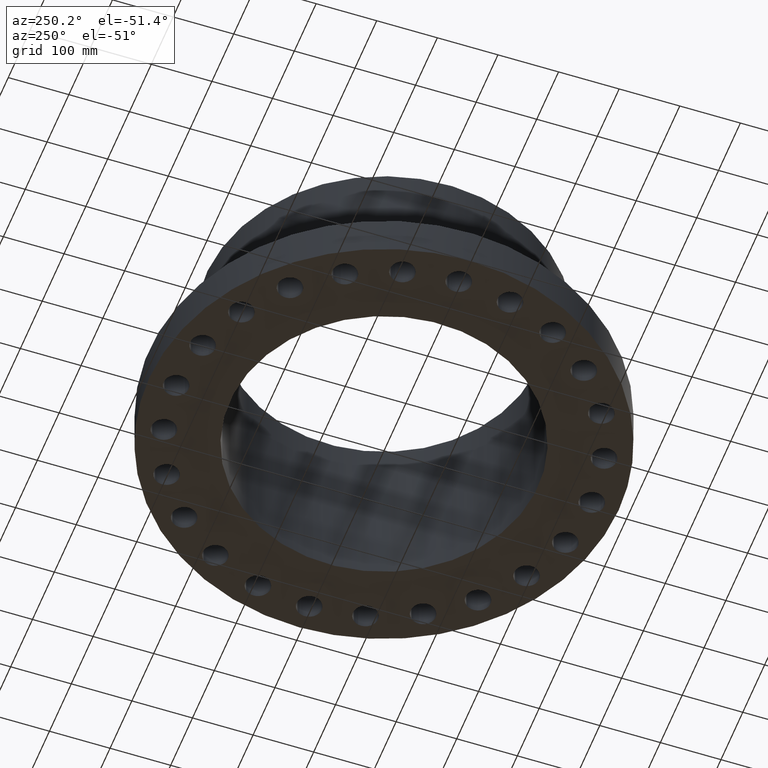
[diagram: clean part render]
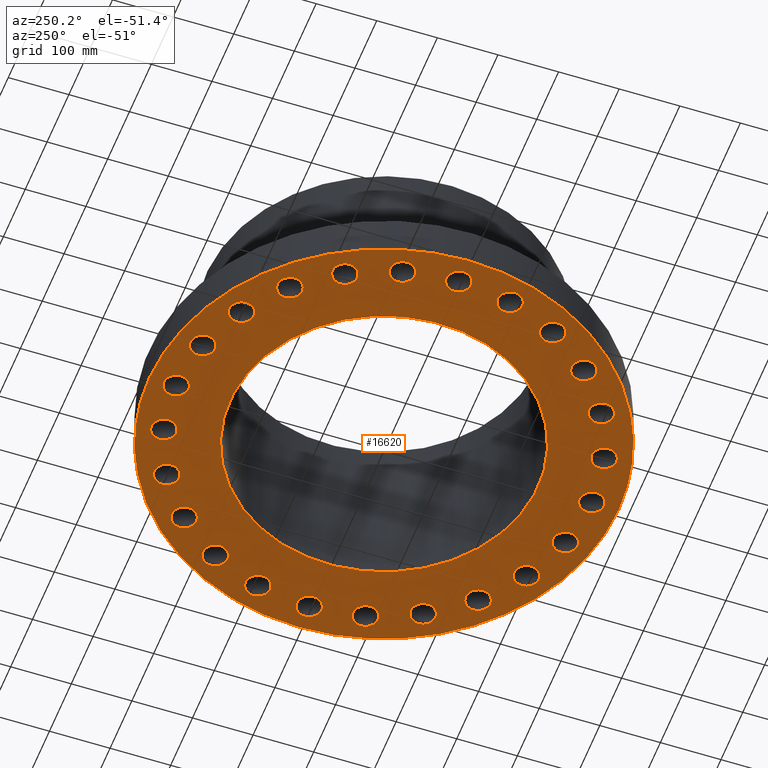
[diagram: same view with one face highlighted and labeled with its STEP entity id]
A machine part, auxiliary view. The second image highlights one B-rep face of the part: STEP entity #16620.
In plain terms, the highlighted planar face has unit normal (0, 0, 1).
Its self-contained STEP definition (entity closure, byte-faithful):
#65=AXIS2_PLACEMENT_3D('Circle Axis2P3D',#63,#64,$) ;
#82=AXIS2_PLACEMENT_3D('Circle Axis2P3D',#80,#81,$) ;
#577=AXIS2_PLACEMENT_3D('Circle Axis2P3D',#575,#576,$) ;
#586=AXIS2_PLACEMENT_3D('Circle Axis2P3D',#584,#585,$) ;
#593=AXIS2_PLACEMENT_3D('Circle Axis2P3D',#591,#592,$) ;
#619=AXIS2_PLACEMENT_3D('Circle Axis2P3D',#617,#618,$) ;
#626=AXIS2_PLACEMENT_3D('Circle Axis2P3D',#624,#625,$) ;
#633=AXIS2_PLACEMENT_3D('Circle Axis2P3D',#631,#632,$) ;
#709=AXIS2_PLACEMENT_3D('Circle Axis2P3D',#707,#708,$) ;
#721=AXIS2_PLACEMENT_3D('Circle Axis2P3D',#719,#720,$) ;
#752=AXIS2_PLACEMENT_3D('Circle Axis2P3D',#750,#751,$) ;
#764=AXIS2_PLACEMENT_3D('Circle Axis2P3D',#762,#763,$) ;
#795=AXIS2_PLACEMENT_3D('Circle Axis2P3D',#793,#794,$) ;
#807=AXIS2_PLACEMENT_3D('Circle Axis2P3D',#805,#806,$) ;
#838=AXIS2_PLACEMENT_3D('Circle Axis2P3D',#836,#837,$) ;
#850=AXIS2_PLACEMENT_3D('Circle Axis2P3D',#848,#849,$) ;
#881=AXIS2_PLACEMENT_3D('Circle Axis2P3D',#879,#880,$) ;
#893=AXIS2_PLACEMENT_3D('Circle Axis2P3D',#891,#892,$) ;
#924=AXIS2_PLACEMENT_3D('Circle Axis2P3D',#922,#923,$) ;
#936=AXIS2_PLACEMENT_3D('Circle Axis2P3D',#934,#935,$) ;
#967=AXIS2_PLACEMENT_3D('Circle Axis2P3D',#965,#966,$) ;
#979=AXIS2_PLACEMENT_3D('Circle Axis2P3D',#977,#978,$) ;
#1010=AXIS2_PLACEMENT_3D('Circle Axis2P3D',#1008,#1009,$) ;
#1022=AXIS2_PLACEMENT_3D('Circle Axis2P3D',#1020,#1021,$) ;
#1053=AXIS2_PLACEMENT_3D('Circle Axis2P3D',#1051,#1052,$) ;
#1065=AXIS2_PLACEMENT_3D('Circle Axis2P3D',#1063,#1064,$) ;
#1096=AXIS2_PLACEMENT_3D('Circle Axis2P3D',#1094,#1095,$) ;
#1108=AXIS2_PLACEMENT_3D('Circle Axis2P3D',#1106,#1107,$) ;
#1139=AXIS2_PLACEMENT_3D('Circle Axis2P3D',#1137,#1138,$) ;
#1151=AXIS2_PLACEMENT_3D('Circle Axis2P3D',#1149,#1150,$) ;
#1182=AXIS2_PLACEMENT_3D('Circle Axis2P3D',#1180,#1181,$) ;
#1194=AXIS2_PLACEMENT_3D('Circle Axis2P3D',#1192,#1193,$) ;
#1225=AXIS2_PLACEMENT_3D('Circle Axis2P3D',#1223,#1224,$) ;
#1237=AXIS2_PLACEMENT_3D('Circle Axis2P3D',#1235,#1236,$) ;
#1268=AXIS2_PLACEMENT_3D('Circle Axis2P3D',#1266,#1267,$) ;
#1280=AXIS2_PLACEMENT_3D('Circle Axis2P3D',#1278,#1279,$) ;
#1311=AXIS2_PLACEMENT_3D('Circle Axis2P3D',#1309,#1310,$) ;
#1323=AXIS2_PLACEMENT_3D('Circle Axis2P3D',#1321,#1322,$) ;
#1354=AXIS2_PLACEMENT_3D('Circle Axis2P3D',#1352,#1353,$) ;
#1366=AXIS2_PLACEMENT_3D('Circle Axis2P3D',#1364,#1365,$) ;
#1397=AXIS2_PLACEMENT_3D('Circle Axis2P3D',#1395,#1396,$) ;
#1409=AXIS2_PLACEMENT_3D('Circle Axis2P3D',#1407,#1408,$) ;
#1440=AXIS2_PLACEMENT_3D('Circle Axis2P3D',#1438,#1439,$) ;
#1452=AXIS2_PLACEMENT_3D('Circle Axis2P3D',#1450,#1451,$) ;
#1483=AXIS2_PLACEMENT_3D('Circle Axis2P3D',#1481,#1482,$) ;
#1495=AXIS2_PLACEMENT_3D('Circle Axis2P3D',#1493,#1494,$) ;
#1526=AXIS2_PLACEMENT_3D('Circle Axis2P3D',#1524,#1525,$) ;
#1538=AXIS2_PLACEMENT_3D('Circle Axis2P3D',#1536,#1537,$) ;
#1569=AXIS2_PLACEMENT_3D('Circle Axis2P3D',#1567,#1568,$) ;
#1581=AXIS2_PLACEMENT_3D('Circle Axis2P3D',#1579,#1580,$) ;
#1612=AXIS2_PLACEMENT_3D('Circle Axis2P3D',#1610,#1611,$) ;
#1624=AXIS2_PLACEMENT_3D('Circle Axis2P3D',#1622,#1623,$) ;
#1655=AXIS2_PLACEMENT_3D('Circle Axis2P3D',#1653,#1654,$) ;
#1667=AXIS2_PLACEMENT_3D('Circle Axis2P3D',#1665,#1666,$) ;
#1949=AXIS2_PLACEMENT_3D('Circle Axis2P3D',#1947,#1948,$) ;
#1975=AXIS2_PLACEMENT_3D('Circle Axis2P3D',#1973,#1974,$) ;
#16510=AXIS2_PLACEMENT_3D('Plane Axis2P3D',#16507,#16508,#16509) ;
#46=CARTESIAN_POINT('Vertex',(12.7891581249,-0.388334686271,2.2401153548E-016)) ;
#60=CARTESIAN_POINT('Vertex',(14.2108418752,0.388334686271,2.2401153548E-016)) ;
#63=CARTESIAN_POINT('Axis2P3D Location',(13.5000000001,0.,0.)) ;
#80=CARTESIAN_POINT('Axis2P3D Location',(13.5000000001,0.,0.)) ;
#575=CARTESIAN_POINT('Axis2P3D Location',(0.,0.,2.23792987641E-015)) ;
#579=CARTESIAN_POINT('Vertex',(-3.6314189292E-014,15.2500000001,0.)) ;
#581=CARTESIAN_POINT('Vertex',(7.31123946374,13.3831340689,2.23792987641E-015)) ;
#584=CARTESIAN_POINT('Axis2P3D Location',(0.,0.,2.23792987641E-015)) ;
#588=CARTESIAN_POINT('Vertex',(-15.2500000001,-8.63994681895E-015,0.)) ;
#591=CARTESIAN_POINT('Axis2P3D Location',(0.,0.,2.23792987641E-015)) ;
#595=CARTESIAN_POINT('Vertex',(-7.31123946374,-13.3831340689,2.23792987641E-015)) ;
#617=CARTESIAN_POINT('Axis2P3D Location',(0.,0.,2.23792987641E-015)) ;
#621=CARTESIAN_POINT('Vertex',(-1.26109277161E-014,-15.2500000001,0.)) ;
#624=CARTESIAN_POINT('Axis2P3D Location',(0.,0.,2.23792987641E-015)) ;
#628=CARTESIAN_POINT('Vertex',(15.2500000001,4.47585975282E-015,0.)) ;
#631=CARTESIAN_POINT('Axis2P3D Location',(0.,0.,2.23792987641E-015)) ;
#697=CARTESIAN_POINT('Vertex',(12.2528697167,-3.68518019627,2.2401153548E-016)) ;
#704=CARTESIAN_POINT('Vertex',(13.8271275932,-3.30293402153,2.2401153548E-016)) ;
#707=CARTESIAN_POINT('Axis2P3D Location',(13.039998655,-3.4940571089,0.)) ;
#719=CARTESIAN_POINT('Axis2P3D Location',(13.039998655,-3.4940571089,0.)) ;
#740=CARTESIAN_POINT('Vertex',(10.8815684861,-6.73088676594,2.2401153548E-016)) ;
#747=CARTESIAN_POINT('Vertex',(12.5011174162,-6.76911323411,2.2401153548E-016)) ;
#750=CARTESIAN_POINT('Axis2P3D Location',(11.6913429511,-6.75000000003,0.)) ;
#762=CARTESIAN_POINT('Axis2P3D Location',(11.6913429511,-6.75000000003,0.)) ;
#783=CARTESIAN_POINT('Vertex',(8.76870634577,-9.31789452583,2.2401153548E-016)) ;
#790=CARTESIAN_POINT('Vertex',(10.3231767463,-9.77398856628,2.2401153548E-016)) ;
#793=CARTESIAN_POINT('Axis2P3D Location',(9.54594154606,-9.54594154606,0.)) ;
#805=CARTESIAN_POINT('Axis2P3D Location',(9.54594154606,-9.54594154606,0.)) ;
#826=CARTESIAN_POINT('Vertex',(6.05827135898,-11.2699031723,2.2401153548E-016)) ;
#833=CARTESIAN_POINT('Vertex',(7.44172864108,-12.1127827299,2.2401153548E-016)) ;
#836=CARTESIAN_POINT('Axis2P3D Location',(6.75000000003,-11.6913429511,0.)) ;
#848=CARTESIAN_POINT('Axis2P3D Location',(6.75000000003,-11.6913429511,0.)) ;
#869=CARTESIAN_POINT('Vertex',(2.93497519084,-12.453886542,2.2401153548E-016)) ;
#876=CARTESIAN_POINT('Vertex',(4.05313902695,-13.6261107679,2.2401153548E-016)) ;
#879=CARTESIAN_POINT('Axis2P3D Location',(3.4940571089,-13.039998655,0.)) ;
#891=CARTESIAN_POINT('Axis2P3D Location',(3.4940571089,-13.039998655,0.)) ;
#912=CARTESIAN_POINT('Vertex',(-0.388334686271,-12.7891581249,2.2401153548E-016)) ;
#919=CARTESIAN_POINT('Vertex',(0.388334686271,-14.2108418752,2.2401153548E-016)) ;
#922=CARTESIAN_POINT('Axis2P3D Location',(-1.41129328698E-015,-13.5000000001,0.)) ;
#934=CARTESIAN_POINT('Axis2P3D Location',(-1.41129328698E-015,-13.5000000001,0.)) ;
#955=CARTESIAN_POINT('Vertex',(-3.68518019627,-12.2528697167,2.22918796283E-016)) ;
#962=CARTESIAN_POINT('Vertex',(-3.30293402153,-13.8271275932,2.22918796283E-016)) ;
#965=CARTESIAN_POINT('Axis2P3D Location',(-3.4940571089,-13.039998655,-2.18547839493E-018)) ;
#977=CARTESIAN_POINT('Axis2P3D Location',(-3.4940571089,-13.039998655,-2.18547839493E-018)) ;
#998=CARTESIAN_POINT('Vertex',(-6.73088676594,-10.8815684861,2.22372426684E-016)) ;
#1005=CARTESIAN_POINT('Vertex',(-6.76911323411,-12.5011174162,2.22372426684E-016)) ;
#1008=CARTESIAN_POINT('Axis2P3D Location',(-6.75000000003,-11.6913429511,-3.2782175924E-018)) ;
#1020=CARTESIAN_POINT('Axis2P3D Location',(-6.75000000003,-11.6913429511,-3.2782175924E-018)) ;
#1041=CARTESIAN_POINT('Vertex',(-9.31789452583,-8.76870634577,2.2401153548E-016)) ;
#1048=CARTESIAN_POINT('Vertex',(-9.77398856628,-10.3231767463,2.2401153548E-016)) ;
#1051=CARTESIAN_POINT('Axis2P3D Location',(-9.54594154606,-9.54594154606,0.)) ;
#1063=CARTESIAN_POINT('Axis2P3D Location',(-9.54594154606,-9.54594154606,0.)) ;
#1084=CARTESIAN_POINT('Vertex',(-11.2699031723,-6.05827135898,2.2401153548E-016)) ;
#1091=CARTESIAN_POINT('Vertex',(-12.1127827299,-7.44172864108,2.2401153548E-016)) ;
#1094=CARTESIAN_POINT('Axis2P3D Location',(-11.6913429511,-6.75000000003,0.)) ;
#1106=CARTESIAN_POINT('Axis2P3D Location',(-11.6913429511,-6.75000000003,0.)) ;
#1127=CARTESIAN_POINT('Vertex',(-12.453886542,-2.93497519084,2.2401153548E-016)) ;
#1134=CARTESIAN_POINT('Vertex',(-13.6261107679,-4.05313902695,2.2401153548E-016)) ;
#1137=CARTESIAN_POINT('Axis2P3D Location',(-13.039998655,-3.4940571089,0.)) ;
#1149=CARTESIAN_POINT('Axis2P3D Location',(-13.039998655,-3.4940571089,0.)) ;
#1170=CARTESIAN_POINT('Vertex',(-12.7891581249,0.388334686271,2.2401153548E-016)) ;
#1177=CARTESIAN_POINT('Vertex',(-14.2108418752,-0.388334686271,2.2401153548E-016)) ;
#1180=CARTESIAN_POINT('Axis2P3D Location',(-13.5000000001,-1.65327317886E-015,0.)) ;
#1192=CARTESIAN_POINT('Axis2P3D Location',(-13.5000000001,-1.65327317886E-015,0.)) ;
#1213=CARTESIAN_POINT('Vertex',(-12.2528697167,3.68518019627,2.2401153548E-016)) ;
#1220=CARTESIAN_POINT('Vertex',(-13.8271275932,3.30293402153,2.2401153548E-016)) ;
#1223=CARTESIAN_POINT('Axis2P3D Location',(-13.039998655,3.4940571089,0.)) ;
#1235=CARTESIAN_POINT('Axis2P3D Location',(-13.039998655,3.4940571089,0.)) ;
#1256=CARTESIAN_POINT('Vertex',(-10.8815684861,6.73088676594,2.2401153548E-016)) ;
#1263=CARTESIAN_POINT('Vertex',(-12.5011174162,6.76911323411,2.2401153548E-016)) ;
#1266=CARTESIAN_POINT('Axis2P3D Location',(-11.6913429511,6.75000000003,0.)) ;
#1278=CARTESIAN_POINT('Axis2P3D Location',(-11.6913429511,6.75000000003,0.)) ;
#1299=CARTESIAN_POINT('Vertex',(-8.76870634577,9.31789452583,2.2401153548E-016)) ;
#1306=CARTESIAN_POINT('Vertex',(-10.3231767463,9.77398856628,2.2401153548E-016)) ;
#1309=CARTESIAN_POINT('Axis2P3D Location',(-9.54594154606,9.54594154606,0.)) ;
#1321=CARTESIAN_POINT('Axis2P3D Location',(-9.54594154606,9.54594154606,0.)) ;
#1342=CARTESIAN_POINT('Vertex',(-6.05827135898,11.2699031723,2.2401153548E-016)) ;
#1349=CARTESIAN_POINT('Vertex',(-7.44172864108,12.1127827299,2.2401153548E-016)) ;
#1352=CARTESIAN_POINT('Axis2P3D Location',(-6.75000000003,11.6913429511,0.)) ;
#1364=CARTESIAN_POINT('Axis2P3D Location',(-6.75000000003,11.6913429511,0.)) ;
#1385=CARTESIAN_POINT('Vertex',(-2.93497519084,12.453886542,2.2401153548E-016)) ;
#1392=CARTESIAN_POINT('Vertex',(-4.05313902695,13.6261107679,2.2401153548E-016)) ;
#1395=CARTESIAN_POINT('Axis2P3D Location',(-3.4940571089,13.039998655,0.)) ;
#1407=CARTESIAN_POINT('Axis2P3D Location',(-3.4940571089,13.039998655,0.)) ;
#1428=CARTESIAN_POINT('Vertex',(0.388334686271,12.7891581249,2.2401153548E-016)) ;
#1435=CARTESIAN_POINT('Vertex',(-0.388334686271,14.2108418752,2.2401153548E-016)) ;
#1438=CARTESIAN_POINT('Axis2P3D Location',(-2.47990976828E-015,13.5000000001,0.)) ;
#1450=CARTESIAN_POINT('Axis2P3D Location',(-2.47990976828E-015,13.5000000001,0.)) ;
#1471=CARTESIAN_POINT('Vertex',(3.68518019627,12.2528697167,2.2401153548E-016)) ;
#1478=CARTESIAN_POINT('Vertex',(3.30293402153,13.8271275932,2.2401153548E-016)) ;
#1481=CARTESIAN_POINT('Axis2P3D Location',(3.4940571089,13.039998655,0.)) ;
#1493=CARTESIAN_POINT('Axis2P3D Location',(3.4940571089,13.039998655,0.)) ;
#1514=CARTESIAN_POINT('Vertex',(6.73088676594,10.8815684861,2.2401153548E-016)) ;
#1521=CARTESIAN_POINT('Vertex',(6.76911323411,12.5011174162,2.2401153548E-016)) ;
#1524=CARTESIAN_POINT('Axis2P3D Location',(6.75000000003,11.6913429511,0.)) ;
#1536=CARTESIAN_POINT('Axis2P3D Location',(6.75000000003,11.6913429511,0.)) ;
#1557=CARTESIAN_POINT('Vertex',(9.31789452583,8.76870634577,2.2401153548E-016)) ;
#1564=CARTESIAN_POINT('Vertex',(9.77398856628,10.3231767463,2.2401153548E-016)) ;
#1567=CARTESIAN_POINT('Axis2P3D Location',(9.54594154606,9.54594154606,0.)) ;
#1579=CARTESIAN_POINT('Axis2P3D Location',(9.54594154606,9.54594154606,0.)) ;
#1600=CARTESIAN_POINT('Vertex',(11.2699031723,6.05827135898,2.2401153548E-016)) ;
#1607=CARTESIAN_POINT('Vertex',(12.1127827299,7.44172864108,2.2401153548E-016)) ;
#1610=CARTESIAN_POINT('Axis2P3D Location',(11.6913429511,6.75000000003,0.)) ;
#1622=CARTESIAN_POINT('Axis2P3D Location',(11.6913429511,6.75000000003,0.)) ;
#1643=CARTESIAN_POINT('Vertex',(12.453886542,2.93497519084,2.2401153548E-016)) ;
#1650=CARTESIAN_POINT('Vertex',(13.6261107679,4.05313902695,2.2401153548E-016)) ;
#1653=CARTESIAN_POINT('Axis2P3D Location',(13.039998655,3.4940571089,0.)) ;
#1665=CARTESIAN_POINT('Axis2P3D Location',(13.039998655,3.4940571089,0.)) ;
#1947=CARTESIAN_POINT('Axis2P3D Location',(0.,0.,0.)) ;
#1951=CARTESIAN_POINT('Vertex',(-4.79425538606,-8.77582561894,0.)) ;
#1953=CARTESIAN_POINT('Vertex',(4.79425538606,8.77582561894,0.)) ;
#1973=CARTESIAN_POINT('Axis2P3D Location',(0.,0.,0.)) ;
#16507=CARTESIAN_POINT('Axis2P3D Location',(0.,0.,0.)) ;
#64=DIRECTION('Axis2P3D Direction',(0.,-0.,0.0393700787402)) ;
#81=DIRECTION('Axis2P3D Direction',(0.,-0.,0.0393700787402)) ;
#576=DIRECTION('Axis2P3D Direction',(0.,0.,-0.0393700787402)) ;
#585=DIRECTION('Axis2P3D Direction',(0.,0.,-0.0393700787402)) ;
#592=DIRECTION('Axis2P3D Direction',(0.,0.,-0.0393700787402)) ;
#618=DIRECTION('Axis2P3D Direction',(0.,0.,-0.0393700787402)) ;
#625=DIRECTION('Axis2P3D Direction',(0.,0.,-0.0393700787402)) ;
#632=DIRECTION('Axis2P3D Direction',(0.,0.,-0.0393700787402)) ;
#708=DIRECTION('Axis2P3D Direction',(-0.,0.,0.0393700787402)) ;
#720=DIRECTION('Axis2P3D Direction',(-0.,0.,0.0393700787402)) ;
#751=DIRECTION('Axis2P3D Direction',(-0.,0.,0.0393700787402)) ;
#763=DIRECTION('Axis2P3D Direction',(-0.,0.,0.0393700787402)) ;
#794=DIRECTION('Axis2P3D Direction',(-0.,0.,0.0393700787402)) ;
#806=DIRECTION('Axis2P3D Direction',(-0.,0.,0.0393700787402)) ;
#837=DIRECTION('Axis2P3D Direction',(-0.,0.,0.0393700787402)) ;
#849=DIRECTION('Axis2P3D Direction',(-0.,0.,0.0393700787402)) ;
#880=DIRECTION('Axis2P3D Direction',(-0.,0.,0.0393700787402)) ;
#892=DIRECTION('Axis2P3D Direction',(-0.,0.,0.0393700787402)) ;
#923=DIRECTION('Axis2P3D Direction',(-0.,0.,0.0393700787402)) ;
#935=DIRECTION('Axis2P3D Direction',(-0.,0.,0.0393700787402)) ;
#966=DIRECTION('Axis2P3D Direction',(0.,0.,0.0393700787402)) ;
#978=DIRECTION('Axis2P3D Direction',(0.,0.,0.0393700787402)) ;
#1009=DIRECTION('Axis2P3D Direction',(0.,0.,0.0393700787402)) ;
#1021=DIRECTION('Axis2P3D Direction',(0.,0.,0.0393700787402)) ;
#1052=DIRECTION('Axis2P3D Direction',(0.,0.,0.0393700787402)) ;
#1064=DIRECTION('Axis2P3D Direction',(0.,0.,0.0393700787402)) ;
#1095=DIRECTION('Axis2P3D Direction',(0.,0.,0.0393700787402)) ;
#1107=DIRECTION('Axis2P3D Direction',(0.,0.,0.0393700787402)) ;
#1138=DIRECTION('Axis2P3D Direction',(0.,0.,0.0393700787402)) ;
#1150=DIRECTION('Axis2P3D Direction',(0.,0.,0.0393700787402)) ;
#1181=DIRECTION('Axis2P3D Direction',(0.,0.,0.0393700787402)) ;
#1193=DIRECTION('Axis2P3D Direction',(0.,0.,0.0393700787402)) ;
#1224=DIRECTION('Axis2P3D Direction',(0.,0.,0.0393700787402)) ;
#1236=DIRECTION('Axis2P3D Direction',(0.,0.,0.0393700787402)) ;
#1267=DIRECTION('Axis2P3D Direction',(0.,0.,0.0393700787402)) ;
#1279=DIRECTION('Axis2P3D Direction',(0.,0.,0.0393700787402)) ;
#1310=DIRECTION('Axis2P3D Direction',(0.,0.,0.0393700787402)) ;
#1322=DIRECTION('Axis2P3D Direction',(0.,0.,0.0393700787402)) ;
#1353=DIRECTION('Axis2P3D Direction',(0.,0.,0.0393700787402)) ;
#1365=DIRECTION('Axis2P3D Direction',(0.,0.,0.0393700787402)) ;
#1396=DIRECTION('Axis2P3D Direction',(0.,0.,0.0393700787402)) ;
#1408=DIRECTION('Axis2P3D Direction',(0.,0.,0.0393700787402)) ;
#1439=DIRECTION('Axis2P3D Direction',(0.,0.,0.0393700787402)) ;
#1451=DIRECTION('Axis2P3D Direction',(0.,0.,0.0393700787402)) ;
#1482=DIRECTION('Axis2P3D Direction',(0.,-0.,0.0393700787402)) ;
#1494=DIRECTION('Axis2P3D Direction',(0.,-0.,0.0393700787402)) ;
#1525=DIRECTION('Axis2P3D Direction',(0.,-0.,0.0393700787402)) ;
#1537=DIRECTION('Axis2P3D Direction',(0.,-0.,0.0393700787402)) ;
#1568=DIRECTION('Axis2P3D Direction',(0.,-0.,0.0393700787402)) ;
#1580=DIRECTION('Axis2P3D Direction',(0.,-0.,0.0393700787402)) ;
#1611=DIRECTION('Axis2P3D Direction',(0.,-0.,0.0393700787402)) ;
#1623=DIRECTION('Axis2P3D Direction',(0.,-0.,0.0393700787402)) ;
#1654=DIRECTION('Axis2P3D Direction',(0.,-0.,0.0393700787402)) ;
#1666=DIRECTION('Axis2P3D Direction',(0.,-0.,0.0393700787402)) ;
#1948=DIRECTION('Axis2P3D Direction',(0.,0.,-0.0393700787402)) ;
#1974=DIRECTION('Axis2P3D Direction',(0.,0.,-0.0393700787402)) ;
#16508=DIRECTION('Axis2P3D Direction',(0.,0.,0.0393700787402)) ;
#16509=DIRECTION('Axis2P3D XDirection',(0.0393700787402,0.,0.)) ;
#16513=ORIENTED_EDGE('',*,*,#623,.T.) ;
#16514=ORIENTED_EDGE('',*,*,#597,.T.) ;
#16515=ORIENTED_EDGE('',*,*,#590,.T.) ;
#16516=ORIENTED_EDGE('',*,*,#583,.T.) ;
#16517=ORIENTED_EDGE('',*,*,#635,.T.) ;
#16518=ORIENTED_EDGE('',*,*,#630,.T.) ;
#16521=ORIENTED_EDGE('',*,*,#1657,.F.) ;
#16522=ORIENTED_EDGE('',*,*,#1669,.F.) ;
#16525=ORIENTED_EDGE('',*,*,#1614,.F.) ;
#16526=ORIENTED_EDGE('',*,*,#1626,.F.) ;
#16529=ORIENTED_EDGE('',*,*,#1571,.F.) ;
#16530=ORIENTED_EDGE('',*,*,#1583,.F.) ;
#16533=ORIENTED_EDGE('',*,*,#1528,.F.) ;
#16534=ORIENTED_EDGE('',*,*,#1540,.F.) ;
#16537=ORIENTED_EDGE('',*,*,#1485,.F.) ;
#16538=ORIENTED_EDGE('',*,*,#1497,.F.) ;
#16541=ORIENTED_EDGE('',*,*,#1442,.F.) ;
#16542=ORIENTED_EDGE('',*,*,#1454,.F.) ;
#16545=ORIENTED_EDGE('',*,*,#1399,.F.) ;
#16546=ORIENTED_EDGE('',*,*,#1411,.F.) ;
#16549=ORIENTED_EDGE('',*,*,#1356,.F.) ;
#16550=ORIENTED_EDGE('',*,*,#1368,.F.) ;
#16553=ORIENTED_EDGE('',*,*,#1313,.F.) ;
#16554=ORIENTED_EDGE('',*,*,#1325,.F.) ;
#16557=ORIENTED_EDGE('',*,*,#1270,.F.) ;
#16558=ORIENTED_EDGE('',*,*,#1282,.F.) ;
#16561=ORIENTED_EDGE('',*,*,#1227,.F.) ;
#16562=ORIENTED_EDGE('',*,*,#1239,.F.) ;
#16565=ORIENTED_EDGE('',*,*,#1184,.F.) ;
#16566=ORIENTED_EDGE('',*,*,#1196,.F.) ;
#16569=ORIENTED_EDGE('',*,*,#1141,.F.) ;
#16570=ORIENTED_EDGE('',*,*,#1153,.F.) ;
#16573=ORIENTED_EDGE('',*,*,#1098,.F.) ;
#16574=ORIENTED_EDGE('',*,*,#1110,.F.) ;
#16577=ORIENTED_EDGE('',*,*,#1055,.F.) ;
#16578=ORIENTED_EDGE('',*,*,#1067,.F.) ;
#16581=ORIENTED_EDGE('',*,*,#1012,.F.) ;
#16582=ORIENTED_EDGE('',*,*,#1024,.F.) ;
#16585=ORIENTED_EDGE('',*,*,#969,.F.) ;
#16586=ORIENTED_EDGE('',*,*,#981,.F.) ;
#16589=ORIENTED_EDGE('',*,*,#926,.F.) ;
#16590=ORIENTED_EDGE('',*,*,#938,.F.) ;
#16593=ORIENTED_EDGE('',*,*,#883,.F.) ;
#16594=ORIENTED_EDGE('',*,*,#895,.F.) ;
#16597=ORIENTED_EDGE('',*,*,#840,.F.) ;
#16598=ORIENTED_EDGE('',*,*,#852,.F.) ;
#16601=ORIENTED_EDGE('',*,*,#797,.F.) ;
#16602=ORIENTED_EDGE('',*,*,#809,.F.) ;
#16605=ORIENTED_EDGE('',*,*,#754,.F.) ;
#16606=ORIENTED_EDGE('',*,*,#766,.F.) ;
#16609=ORIENTED_EDGE('',*,*,#711,.F.) ;
#16610=ORIENTED_EDGE('',*,*,#723,.F.) ;
#16613=ORIENTED_EDGE('',*,*,#84,.F.) ;
#16614=ORIENTED_EDGE('',*,*,#67,.F.) ;
#16617=ORIENTED_EDGE('',*,*,#1977,.T.) ;
#16618=ORIENTED_EDGE('',*,*,#1955,.T.) ;
#16523=FACE_BOUND('',#16520,.T.) ;
#16527=FACE_BOUND('',#16524,.T.) ;
#16531=FACE_BOUND('',#16528,.T.) ;
#16535=FACE_BOUND('',#16532,.T.) ;
#16539=FACE_BOUND('',#16536,.T.) ;
#16543=FACE_BOUND('',#16540,.T.) ;
#16547=FACE_BOUND('',#16544,.T.) ;
#16551=FACE_BOUND('',#16548,.T.) ;
#16555=FACE_BOUND('',#16552,.T.) ;
#16559=FACE_BOUND('',#16556,.T.) ;
#16563=FACE_BOUND('',#16560,.T.) ;
#16567=FACE_BOUND('',#16564,.T.) ;
#16571=FACE_BOUND('',#16568,.T.) ;
#16575=FACE_BOUND('',#16572,.T.) ;
#16579=FACE_BOUND('',#16576,.T.) ;
#16583=FACE_BOUND('',#16580,.T.) ;
#16587=FACE_BOUND('',#16584,.T.) ;
#16591=FACE_BOUND('',#16588,.T.) ;
#16595=FACE_BOUND('',#16592,.T.) ;
#16599=FACE_BOUND('',#16596,.T.) ;
#16603=FACE_BOUND('',#16600,.T.) ;
#16607=FACE_BOUND('',#16604,.T.) ;
#16611=FACE_BOUND('',#16608,.T.) ;
#16615=FACE_BOUND('',#16612,.T.) ;
#16619=FACE_BOUND('',#16616,.T.) ;
#16620=ADVANCED_FACE('PartBody',(#16519,#16523,#16527,#16531,#16535,#16539,#16543,#16547,#16551,#16555,#16559,#16563,#16567,#16571,#16575,#16579,#16583,#16587,#16591,#16595,#16599,#16603,#16607,#16611,#16615,#16619),#16511,.F.) ;
#66=CIRCLE('generated circle',#65,0.810000000003) ;
#83=CIRCLE('generated circle',#82,0.810000000003) ;
#578=CIRCLE('generated circle',#577,15.2500000001) ;
#587=CIRCLE('generated circle',#586,15.2500000001) ;
#594=CIRCLE('generated circle',#593,15.2500000001) ;
#620=CIRCLE('generated circle',#619,15.2500000001) ;
#627=CIRCLE('generated circle',#626,15.2500000001) ;
#634=CIRCLE('generated circle',#633,15.2500000001) ;
#710=CIRCLE('generated circle',#709,0.810000000003) ;
#722=CIRCLE('generated circle',#721,0.810000000003) ;
#753=CIRCLE('generated circle',#752,0.810000000003) ;
#765=CIRCLE('generated circle',#764,0.810000000003) ;
#796=CIRCLE('generated circle',#795,0.810000000003) ;
#808=CIRCLE('generated circle',#807,0.810000000003) ;
#839=CIRCLE('generated circle',#838,0.810000000003) ;
#851=CIRCLE('generated circle',#850,0.810000000003) ;
#882=CIRCLE('generated circle',#881,0.810000000003) ;
#894=CIRCLE('generated circle',#893,0.810000000003) ;
#925=CIRCLE('generated circle',#924,0.810000000003) ;
#937=CIRCLE('generated circle',#936,0.810000000003) ;
#968=CIRCLE('generated circle',#967,0.810000000003) ;
#980=CIRCLE('generated circle',#979,0.810000000003) ;
#1011=CIRCLE('generated circle',#1010,0.810000000003) ;
#1023=CIRCLE('generated circle',#1022,0.810000000003) ;
#1054=CIRCLE('generated circle',#1053,0.810000000003) ;
#1066=CIRCLE('generated circle',#1065,0.810000000003) ;
#1097=CIRCLE('generated circle',#1096,0.810000000003) ;
#1109=CIRCLE('generated circle',#1108,0.810000000003) ;
#1140=CIRCLE('generated circle',#1139,0.810000000003) ;
#1152=CIRCLE('generated circle',#1151,0.810000000003) ;
#1183=CIRCLE('generated circle',#1182,0.810000000003) ;
#1195=CIRCLE('generated circle',#1194,0.810000000003) ;
#1226=CIRCLE('generated circle',#1225,0.810000000003) ;
#1238=CIRCLE('generated circle',#1237,0.810000000003) ;
#1269=CIRCLE('generated circle',#1268,0.810000000003) ;
#1281=CIRCLE('generated circle',#1280,0.810000000003) ;
#1312=CIRCLE('generated circle',#1311,0.810000000003) ;
#1324=CIRCLE('generated circle',#1323,0.810000000003) ;
#1355=CIRCLE('generated circle',#1354,0.810000000003) ;
#1367=CIRCLE('generated circle',#1366,0.810000000003) ;
#1398=CIRCLE('generated circle',#1397,0.810000000003) ;
#1410=CIRCLE('generated circle',#1409,0.810000000003) ;
#1441=CIRCLE('generated circle',#1440,0.810000000003) ;
#1453=CIRCLE('generated circle',#1452,0.810000000003) ;
#1484=CIRCLE('generated circle',#1483,0.810000000003) ;
#1496=CIRCLE('generated circle',#1495,0.810000000003) ;
#1527=CIRCLE('generated circle',#1526,0.810000000003) ;
#1539=CIRCLE('generated circle',#1538,0.810000000003) ;
#1570=CIRCLE('generated circle',#1569,0.810000000003) ;
#1582=CIRCLE('generated circle',#1581,0.810000000003) ;
#1613=CIRCLE('generated circle',#1612,0.810000000003) ;
#1625=CIRCLE('generated circle',#1624,0.810000000003) ;
#1656=CIRCLE('generated circle',#1655,0.810000000003) ;
#1668=CIRCLE('generated circle',#1667,0.810000000003) ;
#1950=CIRCLE('generated circle',#1949,10.) ;
#1976=CIRCLE('generated circle',#1975,10.) ;
#67=EDGE_CURVE('',#61,#47,#66,.F.) ;
#84=EDGE_CURVE('',#47,#61,#83,.F.) ;
#583=EDGE_CURVE('',#580,#582,#578,.T.) ;
#590=EDGE_CURVE('',#589,#580,#587,.T.) ;
#597=EDGE_CURVE('',#596,#589,#594,.T.) ;
#623=EDGE_CURVE('',#622,#596,#620,.T.) ;
#630=EDGE_CURVE('',#629,#622,#627,.T.) ;
#635=EDGE_CURVE('',#582,#629,#634,.T.) ;
#711=EDGE_CURVE('',#705,#698,#710,.F.) ;
#723=EDGE_CURVE('',#698,#705,#722,.F.) ;
#754=EDGE_CURVE('',#748,#741,#753,.F.) ;
#766=EDGE_CURVE('',#741,#748,#765,.F.) ;
#797=EDGE_CURVE('',#791,#784,#796,.F.) ;
#809=EDGE_CURVE('',#784,#791,#808,.F.) ;
#840=EDGE_CURVE('',#834,#827,#839,.F.) ;
#852=EDGE_CURVE('',#827,#834,#851,.F.) ;
#883=EDGE_CURVE('',#877,#870,#882,.F.) ;
#895=EDGE_CURVE('',#870,#877,#894,.F.) ;
#926=EDGE_CURVE('',#920,#913,#925,.F.) ;
#938=EDGE_CURVE('',#913,#920,#937,.F.) ;
#969=EDGE_CURVE('',#963,#956,#968,.F.) ;
#981=EDGE_CURVE('',#956,#963,#980,.F.) ;
#1012=EDGE_CURVE('',#1006,#999,#1011,.F.) ;
#1024=EDGE_CURVE('',#999,#1006,#1023,.F.) ;
#1055=EDGE_CURVE('',#1049,#1042,#1054,.F.) ;
#1067=EDGE_CURVE('',#1042,#1049,#1066,.F.) ;
#1098=EDGE_CURVE('',#1092,#1085,#1097,.F.) ;
#1110=EDGE_CURVE('',#1085,#1092,#1109,.F.) ;
#1141=EDGE_CURVE('',#1135,#1128,#1140,.F.) ;
#1153=EDGE_CURVE('',#1128,#1135,#1152,.F.) ;
#1184=EDGE_CURVE('',#1178,#1171,#1183,.F.) ;
#1196=EDGE_CURVE('',#1171,#1178,#1195,.F.) ;
#1227=EDGE_CURVE('',#1221,#1214,#1226,.F.) ;
#1239=EDGE_CURVE('',#1214,#1221,#1238,.F.) ;
#1270=EDGE_CURVE('',#1264,#1257,#1269,.F.) ;
#1282=EDGE_CURVE('',#1257,#1264,#1281,.F.) ;
#1313=EDGE_CURVE('',#1307,#1300,#1312,.F.) ;
#1325=EDGE_CURVE('',#1300,#1307,#1324,.F.) ;
#1356=EDGE_CURVE('',#1350,#1343,#1355,.F.) ;
#1368=EDGE_CURVE('',#1343,#1350,#1367,.F.) ;
#1399=EDGE_CURVE('',#1393,#1386,#1398,.F.) ;
#1411=EDGE_CURVE('',#1386,#1393,#1410,.F.) ;
#1442=EDGE_CURVE('',#1436,#1429,#1441,.F.) ;
#1454=EDGE_CURVE('',#1429,#1436,#1453,.F.) ;
#1485=EDGE_CURVE('',#1479,#1472,#1484,.F.) ;
#1497=EDGE_CURVE('',#1472,#1479,#1496,.F.) ;
#1528=EDGE_CURVE('',#1522,#1515,#1527,.F.) ;
#1540=EDGE_CURVE('',#1515,#1522,#1539,.F.) ;
#1571=EDGE_CURVE('',#1565,#1558,#1570,.F.) ;
#1583=EDGE_CURVE('',#1558,#1565,#1582,.F.) ;
#1614=EDGE_CURVE('',#1608,#1601,#1613,.F.) ;
#1626=EDGE_CURVE('',#1601,#1608,#1625,.F.) ;
#1657=EDGE_CURVE('',#1651,#1644,#1656,.F.) ;
#1669=EDGE_CURVE('',#1644,#1651,#1668,.F.) ;
#1955=EDGE_CURVE('',#1952,#1954,#1950,.F.) ;
#1977=EDGE_CURVE('',#1954,#1952,#1976,.F.) ;
#16512=EDGE_LOOP('',(#16513,#16514,#16515,#16516,#16517,#16518)) ;
#16520=EDGE_LOOP('',(#16521,#16522)) ;
#16524=EDGE_LOOP('',(#16525,#16526)) ;
#16528=EDGE_LOOP('',(#16529,#16530)) ;
#16532=EDGE_LOOP('',(#16533,#16534)) ;
#16536=EDGE_LOOP('',(#16537,#16538)) ;
#16540=EDGE_LOOP('',(#16541,#16542)) ;
#16544=EDGE_LOOP('',(#16545,#16546)) ;
#16548=EDGE_LOOP('',(#16549,#16550)) ;
#16552=EDGE_LOOP('',(#16553,#16554)) ;
#16556=EDGE_LOOP('',(#16557,#16558)) ;
#16560=EDGE_LOOP('',(#16561,#16562)) ;
#16564=EDGE_LOOP('',(#16565,#16566)) ;
#16568=EDGE_LOOP('',(#16569,#16570)) ;
#16572=EDGE_LOOP('',(#16573,#16574)) ;
#16576=EDGE_LOOP('',(#16577,#16578)) ;
#16580=EDGE_LOOP('',(#16581,#16582)) ;
#16584=EDGE_LOOP('',(#16585,#16586)) ;
#16588=EDGE_LOOP('',(#16589,#16590)) ;
#16592=EDGE_LOOP('',(#16593,#16594)) ;
#16596=EDGE_LOOP('',(#16597,#16598)) ;
#16600=EDGE_LOOP('',(#16601,#16602)) ;
#16604=EDGE_LOOP('',(#16605,#16606)) ;
#16608=EDGE_LOOP('',(#16609,#16610)) ;
#16612=EDGE_LOOP('',(#16613,#16614)) ;
#16616=EDGE_LOOP('',(#16617,#16618)) ;
#16519=FACE_OUTER_BOUND('',#16512,.T.) ;
#16511=PLANE('',#16510) ;
#47=VERTEX_POINT('',#46) ;
#61=VERTEX_POINT('',#60) ;
#580=VERTEX_POINT('',#579) ;
#582=VERTEX_POINT('',#581) ;
#589=VERTEX_POINT('',#588) ;
#596=VERTEX_POINT('',#595) ;
#622=VERTEX_POINT('',#621) ;
#629=VERTEX_POINT('',#628) ;
#698=VERTEX_POINT('',#697) ;
#705=VERTEX_POINT('',#704) ;
#741=VERTEX_POINT('',#740) ;
#748=VERTEX_POINT('',#747) ;
#784=VERTEX_POINT('',#783) ;
#791=VERTEX_POINT('',#790) ;
#827=VERTEX_POINT('',#826) ;
#834=VERTEX_POINT('',#833) ;
#870=VERTEX_POINT('',#869) ;
#877=VERTEX_POINT('',#876) ;
#913=VERTEX_POINT('',#912) ;
#920=VERTEX_POINT('',#919) ;
#956=VERTEX_POINT('',#955) ;
#963=VERTEX_POINT('',#962) ;
#999=VERTEX_POINT('',#998) ;
#1006=VERTEX_POINT('',#1005) ;
#1042=VERTEX_POINT('',#1041) ;
#1049=VERTEX_POINT('',#1048) ;
#1085=VERTEX_POINT('',#1084) ;
#1092=VERTEX_POINT('',#1091) ;
#1128=VERTEX_POINT('',#1127) ;
#1135=VERTEX_POINT('',#1134) ;
#1171=VERTEX_POINT('',#1170) ;
#1178=VERTEX_POINT('',#1177) ;
#1214=VERTEX_POINT('',#1213) ;
#1221=VERTEX_POINT('',#1220) ;
#1257=VERTEX_POINT('',#1256) ;
#1264=VERTEX_POINT('',#1263) ;
#1300=VERTEX_POINT('',#1299) ;
#1307=VERTEX_POINT('',#1306) ;
#1343=VERTEX_POINT('',#1342) ;
#1350=VERTEX_POINT('',#1349) ;
#1386=VERTEX_POINT('',#1385) ;
#1393=VERTEX_POINT('',#1392) ;
#1429=VERTEX_POINT('',#1428) ;
#1436=VERTEX_POINT('',#1435) ;
#1472=VERTEX_POINT('',#1471) ;
#1479=VERTEX_POINT('',#1478) ;
#1515=VERTEX_POINT('',#1514) ;
#1522=VERTEX_POINT('',#1521) ;
#1558=VERTEX_POINT('',#1557) ;
#1565=VERTEX_POINT('',#1564) ;
#1601=VERTEX_POINT('',#1600) ;
#1608=VERTEX_POINT('',#1607) ;
#1644=VERTEX_POINT('',#1643) ;
#1651=VERTEX_POINT('',#1650) ;
#1952=VERTEX_POINT('',#1951) ;
#1954=VERTEX_POINT('',#1953) ;